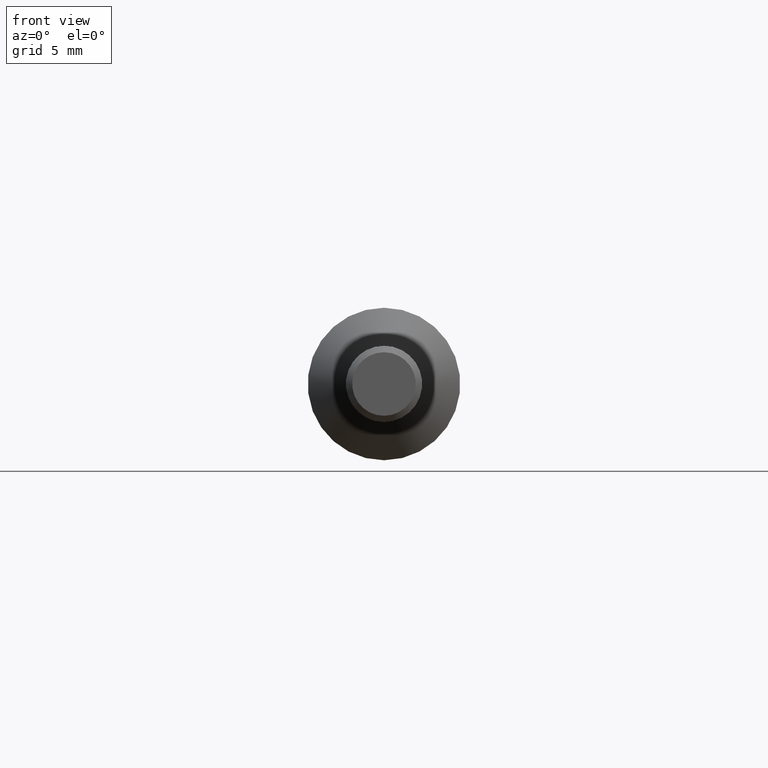
[diagram: clean part render]
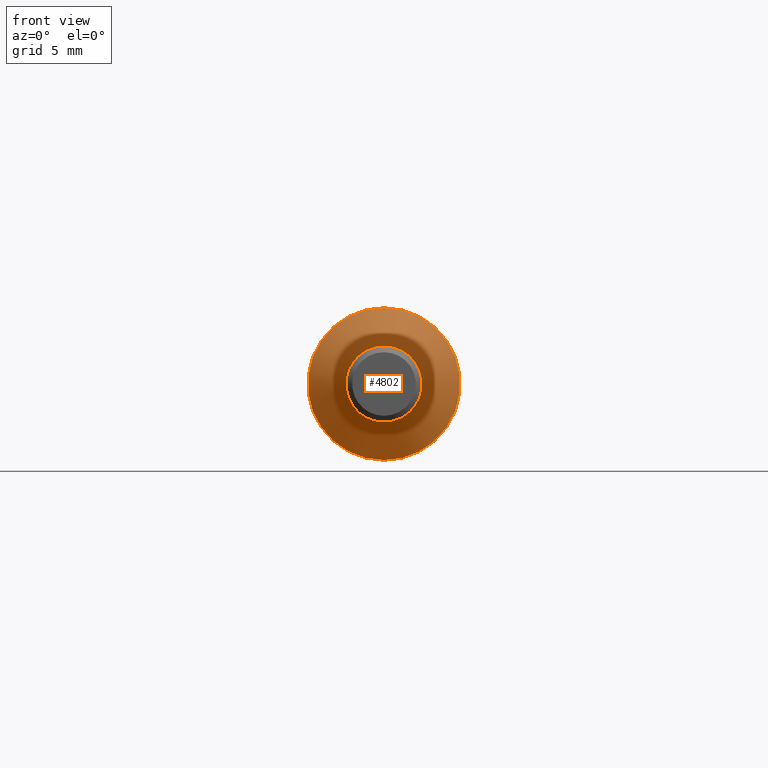
[diagram: same view with one face highlighted and labeled with its STEP entity id]
A machine part, front view. The second image highlights one B-rep face of the part: STEP entity #4802.
In plain terms, the highlighted conical surface has half-angle 45 deg.
Its self-contained STEP definition (entity closure, byte-faithful):
#247 = DIRECTION ( 'NONE',  ( 0.000000000000000000, 0.000000000000000000, 1.000000000000000000 ) ) ;
#1002 = AXIS2_PLACEMENT_3D ( 'NONE', #5170, #13559, #8778 ) ;
#1572 = AXIS2_PLACEMENT_3D ( 'NONE', #6823, #2065, #11691 ) ;
#2065 = DIRECTION ( 'NONE',  ( -0.000000000000000000, -1.000000000000000000, -0.000000000000000000 ) ) ;
#4802 = ADVANCED_FACE ( 'NONE', ( #14102, #10139 ), #9022, .T. ) ;
#5022 = CIRCLE ( 'NONE', #1002, 6.000000000000000000 ) ;
#5170 = CARTESIAN_POINT ( 'NONE',  ( 0.000000000000000000, 27.20000000000003837, 0.000000000000000000 ) ) ;
#5429 = AXIS2_PLACEMENT_3D ( 'NONE', #9610, #13187, #247 ) ;
#5561 = EDGE_CURVE ( 'NONE', #14872, #14872, #12182, .T. ) ;
#5642 = EDGE_LOOP ( 'NONE', ( #10961 ) ) ;
#6510 = CARTESIAN_POINT ( 'NONE',  ( 0.000000000000000000, 24.19999999999999574, -2.999999999999997780 ) ) ;
#6823 = CARTESIAN_POINT ( 'NONE',  ( 0.000000000000000000, 24.19999999999999574, 0.000000000000000000 ) ) ;
#8204 = EDGE_CURVE ( 'NONE', #12434, #12434, #5022, .T. ) ;
#8778 = DIRECTION ( 'NONE',  ( 0.000000000000000000, 0.000000000000000000, -1.000000000000000000 ) ) ;
#9022 = CONICAL_SURFACE ( 'NONE', #5429, 2.999999999999997780, 0.7853981633974412846 ) ;
#9610 = CARTESIAN_POINT ( 'NONE',  ( 0.000000000000000000, 24.19999999999999574, 0.000000000000000000 ) ) ;
#10139 = FACE_BOUND ( 'NONE', #11663, .T. ) ;
#10961 = ORIENTED_EDGE ( 'NONE', *, *, #8204, .T. ) ;
#11663 = EDGE_LOOP ( 'NONE', ( #12580 ) ) ;
#11691 = DIRECTION ( 'NONE',  ( 0.000000000000000000, 0.000000000000000000, -1.000000000000000000 ) ) ;
#12182 = CIRCLE ( 'NONE', #1572, 2.999999999999997780 ) ;
#12434 = VERTEX_POINT ( 'NONE', #12500 ) ;
#12500 = CARTESIAN_POINT ( 'NONE',  ( 0.000000000000000000, 27.20000000000003837, -6.000000000000000000 ) ) ;
#12580 = ORIENTED_EDGE ( 'NONE', *, *, #5561, .F. ) ;
#13187 = DIRECTION ( 'NONE',  ( 0.000000000000000000, 1.000000000000000000, 0.000000000000000000 ) ) ;
#13559 = DIRECTION ( 'NONE',  ( -0.000000000000000000, -1.000000000000000000, -0.000000000000000000 ) ) ;
#14102 = FACE_OUTER_BOUND ( 'NONE', #5642, .T. ) ;
#14872 = VERTEX_POINT ( 'NONE', #6510 ) ;